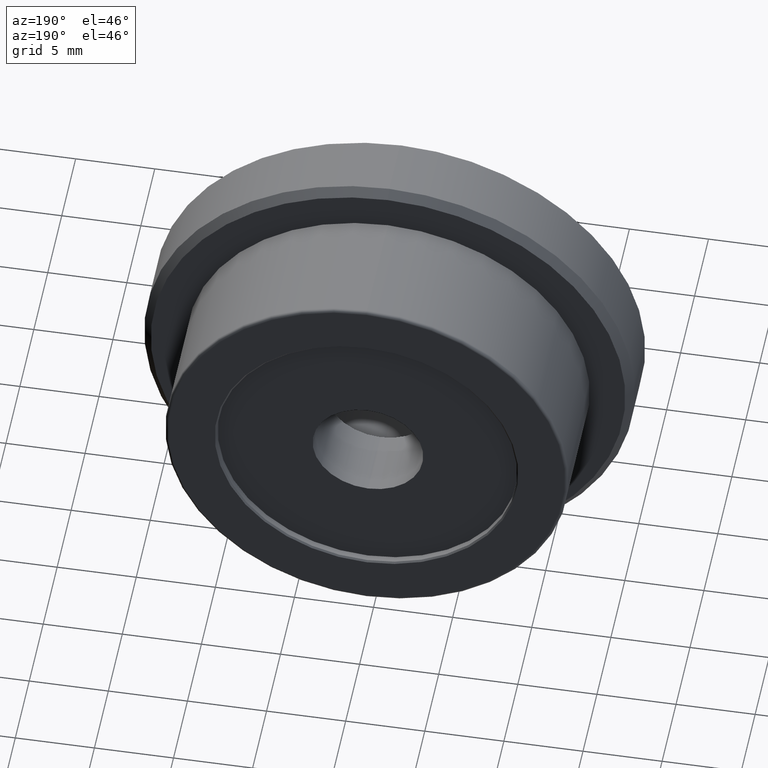
[diagram: clean part render]
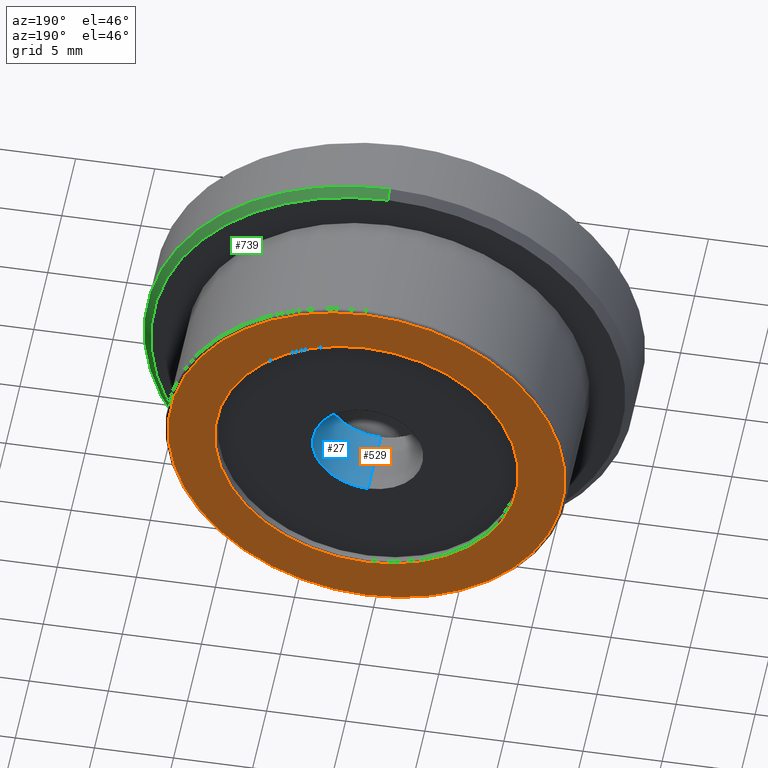
[diagram: same view with three faces highlighted in distinct colors, each labeled with its STEP entity id]
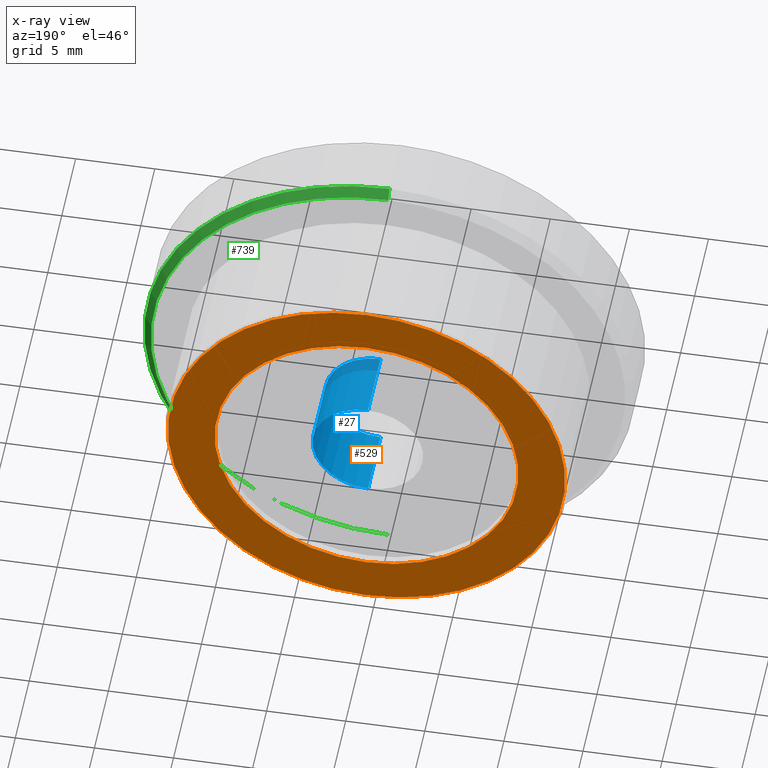
[diagram: x-ray of the same camera — body ghosted, the three highlighted faces saturated]
A machine part, auxiliary view with three faces highlighted in distinct colors.
The next image is the same camera in x-ray (body ghosted, the three faces saturated) — at least one of them is partly hidden behind the body in this view.
Their STEP definitions:

[orange] entity #529 — the highlighted planar face has unit normal (0, -1, 0).
#8 = ORIENTED_EDGE ( 'NONE', *, *, #772, .T. ) ;
#52 = CIRCLE ( 'NONE', #338, 9.600000000000012100 ) ;
#67 = ORIENTED_EDGE ( 'NONE', *, *, #213, .T. ) ;
#97 = AXIS2_PLACEMENT_3D ( 'NONE', #134, #824, #274 ) ;
#130 = CIRCLE ( 'NONE', #377, 9.600000000000012100 ) ;
#131 = EDGE_CURVE ( 'NONE', #382, #138, #810, .T. ) ;
#134 = CARTESIAN_POINT ( 'NONE',  ( 12.75000000000000200, 12.50000000000000000, 0.0000000000000000000 ) ) ;
#138 = VERTEX_POINT ( 'NONE', #643 ) ;
#167 = CARTESIAN_POINT ( 'NONE',  ( 0.0000000000000000000, 12.50000000000000000, 9.600000000000012100 ) ) ;
#190 = FACE_OUTER_BOUND ( 'NONE', #435, .T. ) ;
#204 = ORIENTED_EDGE ( 'NONE', *, *, #131, .T. ) ;
#213 = EDGE_CURVE ( 'NONE', #818, #449, #52, .T. ) ;
#274 = DIRECTION ( 'NONE',  ( 0.0000000000000000000, -0.0000000000000000000, -1.000000000000000000 ) ) ;
#297 = FACE_BOUND ( 'NONE', #646, .T. ) ;
#338 = AXIS2_PLACEMENT_3D ( 'NONE', #508, #369, #578 ) ;
#369 = DIRECTION ( 'NONE',  ( 0.0000000000000000000, -1.000000000000000000, 0.0000000000000000000 ) ) ;
#370 = CARTESIAN_POINT ( 'NONE',  ( 0.0000000000000000000, 12.50000000000000000, 0.0000000000000000000 ) ) ;
#377 = AXIS2_PLACEMENT_3D ( 'NONE', #685, #619, #431 ) ;
#382 = VERTEX_POINT ( 'NONE', #533 ) ;
#388 = CARTESIAN_POINT ( 'NONE',  ( 1.175660927181460400E-015, 12.50000000000000000, -9.600000000000012100 ) ) ;
#431 = DIRECTION ( 'NONE',  ( 0.0000000000000000000, 0.0000000000000000000, -1.000000000000000000 ) ) ;
#434 = DIRECTION ( 'NONE',  ( 0.0000000000000000000, 0.0000000000000000000, -1.000000000000000000 ) ) ;
#435 = EDGE_LOOP ( 'NONE', ( #204, #8 ) ) ;
#449 = VERTEX_POINT ( 'NONE', #388 ) ;
#480 = PLANE ( 'NONE',  #97 ) ;
#506 = DIRECTION ( 'NONE',  ( -0.0000000000000000000, 1.000000000000000000, -0.0000000000000000000 ) ) ;
#508 = CARTESIAN_POINT ( 'NONE',  ( 0.0000000000000000000, 12.50000000000000000, 0.0000000000000000000 ) ) ;
#529 = ADVANCED_FACE ( 'NONE', ( #190, #297 ), #480, .F. ) ;
#533 = CARTESIAN_POINT ( 'NONE',  ( 0.0000000000000000000, 12.50000000000000000, -12.55000000000000100 ) ) ;
#578 = DIRECTION ( 'NONE',  ( 0.0000000000000000000, 0.0000000000000000000, -1.000000000000000000 ) ) ;
#599 = AXIS2_PLACEMENT_3D ( 'NONE', #370, #506, #434 ) ;
#600 = EDGE_CURVE ( 'NONE', #449, #818, #130, .T. ) ;
#619 = DIRECTION ( 'NONE',  ( 0.0000000000000000000, -1.000000000000000000, 0.0000000000000000000 ) ) ;
#643 = CARTESIAN_POINT ( 'NONE',  ( 1.549178200921402100E-015, 12.50000000000000000, 12.55000000000000100 ) ) ;
#646 = EDGE_LOOP ( 'NONE', ( #67, #678 ) ) ;
#678 = ORIENTED_EDGE ( 'NONE', *, *, #600, .T. ) ;
#685 = CARTESIAN_POINT ( 'NONE',  ( 0.0000000000000000000, 12.50000000000000000, 0.0000000000000000000 ) ) ;
#711 = DIRECTION ( 'NONE',  ( -0.0000000000000000000, 1.000000000000000000, -0.0000000000000000000 ) ) ;
#717 = AXIS2_PLACEMENT_3D ( 'NONE', #720, #711, #837 ) ;
#720 = CARTESIAN_POINT ( 'NONE',  ( 0.0000000000000000000, 12.50000000000000000, 0.0000000000000000000 ) ) ;
#732 = CIRCLE ( 'NONE', #599, 12.55000000000000100 ) ;
#772 = EDGE_CURVE ( 'NONE', #138, #382, #732, .T. ) ;
#810 = CIRCLE ( 'NONE', #717, 12.55000000000000100 ) ;
#818 = VERTEX_POINT ( 'NONE', #167 ) ;
#824 = DIRECTION ( 'NONE',  ( 0.0000000000000000000, -1.000000000000000000, 0.0000000000000000000 ) ) ;
#837 = DIRECTION ( 'NONE',  ( 0.0000000000000000000, 0.0000000000000000000, -1.000000000000000000 ) ) ;

[blue] entity #27 — the highlighted cylindrical surface (partial cylindrical patch) has radius 3.5 mm, axis along (-0, 1, -0).
#27 = ADVANCED_FACE ( 'NONE', ( #832 ), #660, .F. ) ;
#62 = AXIS2_PLACEMENT_3D ( 'NONE', #420, #69, #483 ) ;
#69 = DIRECTION ( 'NONE',  ( -0.0000000000000000000, 1.000000000000000000, -0.0000000000000000000 ) ) ;
#88 = DIRECTION ( 'NONE',  ( 0.0000000000000000000, 0.0000000000000000000, 1.000000000000000000 ) ) ;
#100 = VERTEX_POINT ( 'NONE', #415 ) ;
#111 = VECTOR ( 'NONE', #290, 1000.000000000000000 ) ;
#114 = CARTESIAN_POINT ( 'NONE',  ( 4.286263797015738600E-016, 7.500000000000000000, -3.500000000000002200 ) ) ;
#155 = DIRECTION ( 'NONE',  ( -0.0000000000000000000, 1.000000000000000000, -0.0000000000000000000 ) ) ;
#175 = VERTEX_POINT ( 'NONE', #237 ) ;
#220 = CARTESIAN_POINT ( 'NONE',  ( 0.0000000000000000000, 12.50000000000000000, 3.500000000000001300 ) ) ;
#237 = CARTESIAN_POINT ( 'NONE',  ( 0.0000000000000000000, 7.500000000000000000, 3.500000000000001800 ) ) ;
#281 = VERTEX_POINT ( 'NONE', #114 ) ;
#290 = DIRECTION ( 'NONE',  ( -0.0000000000000000000, 1.000000000000000000, -0.0000000000000000000 ) ) ;
#304 = EDGE_LOOP ( 'NONE', ( #544, #799, #567, #458 ) ) ;
#337 = DIRECTION ( 'NONE',  ( 0.0000000000000000000, 0.0000000000000000000, 1.000000000000000000 ) ) ;
#357 = EDGE_CURVE ( 'NONE', #175, #281, #728, .T. ) ;
#379 = AXIS2_PLACEMENT_3D ( 'NONE', #396, #398, #337 ) ;
#396 = CARTESIAN_POINT ( 'NONE',  ( 0.0000000000000000000, 7.500000000000000000, 0.0000000000000000000 ) ) ;
#398 = DIRECTION ( 'NONE',  ( -0.0000000000000000000, 1.000000000000000000, -0.0000000000000000000 ) ) ;
#400 = EDGE_CURVE ( 'NONE', #281, #100, #630, .T. ) ;
#415 = CARTESIAN_POINT ( 'NONE',  ( 4.286263797015737600E-016, 12.00000000000000000, -3.500000000000001300 ) ) ;
#420 = CARTESIAN_POINT ( 'NONE',  ( 0.0000000000000000000, 12.00000000000000000, 0.0000000000000000000 ) ) ;
#425 = AXIS2_PLACEMENT_3D ( 'NONE', #757, #155, #88 ) ;
#458 = ORIENTED_EDGE ( 'NONE', *, *, #844, .T. ) ;
#460 = CARTESIAN_POINT ( 'NONE',  ( 4.286263797015737600E-016, 12.50000000000000000, -3.500000000000001300 ) ) ;
#470 = LINE ( 'NONE', #220, #111 ) ;
#483 = DIRECTION ( 'NONE',  ( 0.0000000000000000000, 0.0000000000000000000, 1.000000000000000000 ) ) ;
#513 = CIRCLE ( 'NONE', #62, 3.500000000000001300 ) ;
#544 = ORIENTED_EDGE ( 'NONE', *, *, #400, .F. ) ;
#567 = ORIENTED_EDGE ( 'NONE', *, *, #704, .T. ) ;
#598 = DIRECTION ( 'NONE',  ( -0.0000000000000000000, 1.000000000000000000, -0.0000000000000000000 ) ) ;
#630 = LINE ( 'NONE', #460, #724 ) ;
#660 = CYLINDRICAL_SURFACE ( 'NONE', #425, 3.500000000000001300 ) ;
#704 = EDGE_CURVE ( 'NONE', #175, #777, #470, .T. ) ;
#713 = CARTESIAN_POINT ( 'NONE',  ( 0.0000000000000000000, 12.00000000000000000, 3.500000000000001300 ) ) ;
#724 = VECTOR ( 'NONE', #598, 1000.000000000000000 ) ;
#728 = CIRCLE ( 'NONE', #379, 3.500000000000001800 ) ;
#757 = CARTESIAN_POINT ( 'NONE',  ( 0.0000000000000000000, 12.50000000000000000, 0.0000000000000000000 ) ) ;
#777 = VERTEX_POINT ( 'NONE', #713 ) ;
#799 = ORIENTED_EDGE ( 'NONE', *, *, #357, .F. ) ;
#832 = FACE_OUTER_BOUND ( 'NONE', #304, .T. ) ;
#844 = EDGE_CURVE ( 'NONE', #777, #100, #513, .T. ) ;

[green] entity #739 — the highlighted conical surface has half-angle 45 deg.
#6 = CARTESIAN_POINT ( 'NONE',  ( 1.867586368699713800E-015, 4.799999999999999800, 15.00000000000000000 ) ) ;
#20 = VERTEX_POINT ( 'NONE', #688 ) ;
#36 = DIRECTION ( 'NONE',  ( -0.0000000000000000000, 1.000000000000000000, -0.0000000000000000000 ) ) ;
#63 = EDGE_CURVE ( 'NONE', #20, #294, #604, .T. ) ;
#110 = CONICAL_SURFACE ( 'NONE', #282, 15.00000000000000000, 0.7853981633974473900 ) ;
#112 = CARTESIAN_POINT ( 'NONE',  ( 0.0000000000000000000, 4.299999999999994500, 15.50000000000000400 ) ) ;
#117 = DIRECTION ( 'NONE',  ( 8.659560562354926700E-017, -0.7071067811865482400, 0.7071067811865469100 ) ) ;
#178 = CARTESIAN_POINT ( 'NONE',  ( 0.0000000000000000000, 4.799999999999999800, 0.0000000000000000000 ) ) ;
#224 = DIRECTION ( 'NONE',  ( 0.0000000000000000000, 0.0000000000000000000, -1.000000000000000000 ) ) ;
#260 = EDGE_CURVE ( 'NONE', #592, #540, #584, .T. ) ;
#276 = ORIENTED_EDGE ( 'NONE', *, *, #63, .F. ) ;
#282 = AXIS2_PLACEMENT_3D ( 'NONE', #632, #417, #224 ) ;
#294 = VERTEX_POINT ( 'NONE', #112 ) ;
#298 = CARTESIAN_POINT ( 'NONE',  ( 0.0000000000000000000, 4.299999999999994500, 0.0000000000000000000 ) ) ;
#309 = EDGE_CURVE ( 'NONE', #592, #294, #522, .T. ) ;
#316 = DIRECTION ( 'NONE',  ( 0.0000000000000000000, 0.0000000000000000000, -1.000000000000000000 ) ) ;
#414 = CARTESIAN_POINT ( 'NONE',  ( 0.0000000000000000000, 4.799999999999999800, -15.00000000000000000 ) ) ;
#417 = DIRECTION ( 'NONE',  ( 0.0000000000000000000, -1.000000000000000000, 0.0000000000000000000 ) ) ;
#443 = EDGE_CURVE ( 'NONE', #540, #20, #451, .T. ) ;
#451 = LINE ( 'NONE', #736, #588 ) ;
#477 = ORIENTED_EDGE ( 'NONE', *, *, #260, .F. ) ;
#489 = VECTOR ( 'NONE', #117, 999.9999999999998900 ) ;
#518 = AXIS2_PLACEMENT_3D ( 'NONE', #298, #702, #829 ) ;
#522 = LINE ( 'NONE', #854, #489 ) ;
#535 = DIRECTION ( 'NONE',  ( 0.0000000000000000000, -0.7071067811865482400, -0.7071067811865469100 ) ) ;
#540 = VERTEX_POINT ( 'NONE', #414 ) ;
#568 = FACE_OUTER_BOUND ( 'NONE', #740, .T. ) ;
#584 = CIRCLE ( 'NONE', #754, 15.00000000000000000 ) ;
#588 = VECTOR ( 'NONE', #535, 999.9999999999998900 ) ;
#592 = VERTEX_POINT ( 'NONE', #6 ) ;
#604 = CIRCLE ( 'NONE', #518, 15.50000000000000400 ) ;
#632 = CARTESIAN_POINT ( 'NONE',  ( 0.0000000000000000000, 4.799999999999999800, 0.0000000000000000000 ) ) ;
#672 = ORIENTED_EDGE ( 'NONE', *, *, #309, .T. ) ;
#688 = CARTESIAN_POINT ( 'NONE',  ( 1.898202538678398000E-015, 4.299999999999994500, -15.50000000000000400 ) ) ;
#702 = DIRECTION ( 'NONE',  ( 0.0000000000000000000, -1.000000000000000000, 0.0000000000000000000 ) ) ;
#736 = CARTESIAN_POINT ( 'NONE',  ( 0.0000000000000000000, 4.799999999999999800, -15.00000000000000000 ) ) ;
#739 = ADVANCED_FACE ( 'NONE', ( #568 ), #110, .T. ) ;
#740 = EDGE_LOOP ( 'NONE', ( #477, #672, #276, #781 ) ) ;
#754 = AXIS2_PLACEMENT_3D ( 'NONE', #178, #36, #316 ) ;
#781 = ORIENTED_EDGE ( 'NONE', *, *, #443, .F. ) ;
#829 = DIRECTION ( 'NONE',  ( 0.0000000000000000000, 0.0000000000000000000, -1.000000000000000000 ) ) ;
#854 = CARTESIAN_POINT ( 'NONE',  ( 1.836970198721029600E-015, 4.799999999999999800, 15.00000000000000000 ) ) ;